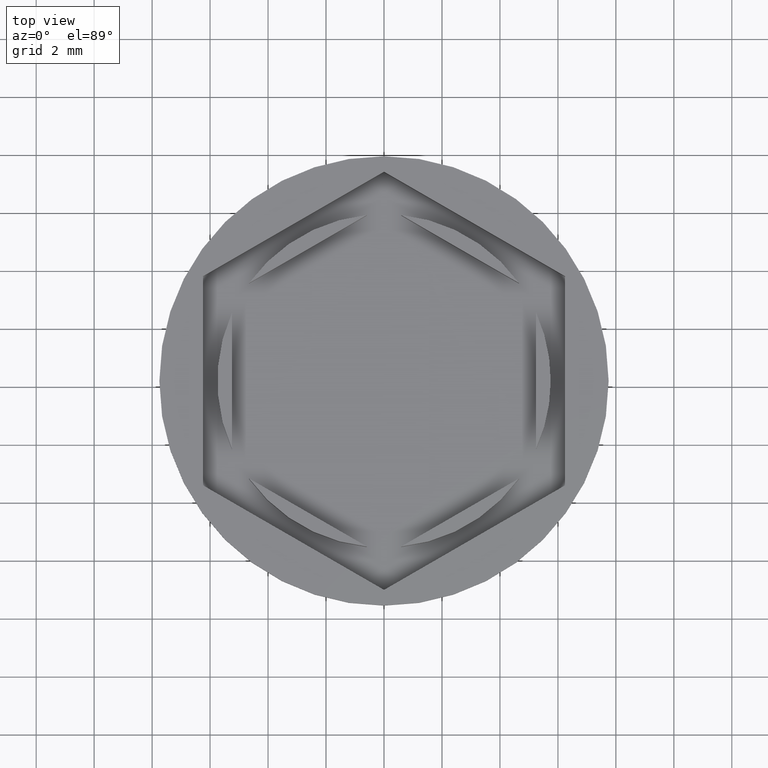
[diagram: clean part render]
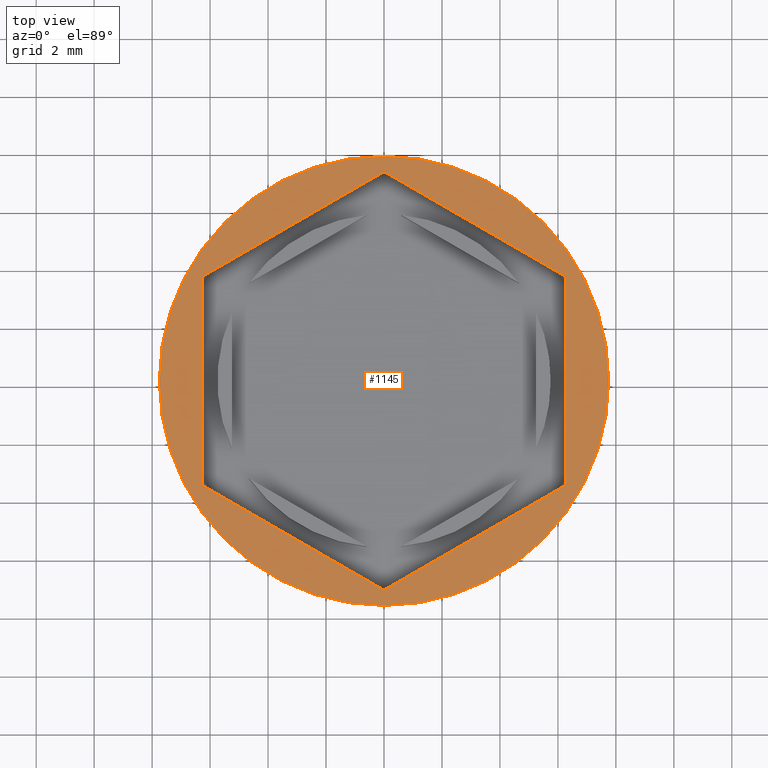
[diagram: same view with one face highlighted and labeled with its STEP entity id]
A machine part, top view. The second image highlights one B-rep face of the part: STEP entity #1145.
In plain terms, the highlighted planar face has unit normal (0, -0, 1).
Its self-contained STEP definition (entity closure, byte-faithful):
#5 = LINE ( 'NONE', #1872, #1799 ) ;
#23 = VECTOR ( 'NONE', #254, 1000.000000000000000 ) ;
#171 = DIRECTION ( 'NONE',  ( 0.000000000000000000, 1.000000000000000000, -0.000000000000000000 ) ) ;
#236 = VECTOR ( 'NONE', #1919, 1000.000000000000114 ) ;
#254 = DIRECTION ( 'NONE',  ( -0.8660254037844385966, -0.5000000000000001110, 0.000000000000000000 ) ) ;
#284 = LINE ( 'NONE', #892, #236 ) ;
#330 = VERTEX_POINT ( 'NONE', #678 ) ;
#339 = AXIS2_PLACEMENT_3D ( 'NONE', #1289, #1455, #713 ) ;
#457 = DIRECTION ( 'NONE',  ( 0.000000000000000000, -0.000000000000000000, 1.000000000000000000 ) ) ;
#459 = CARTESIAN_POINT ( 'NONE',  ( 0.000000000000000000, 0.000000000000000000, 0.000000000000000000 ) ) ;
#481 = CARTESIAN_POINT ( 'NONE',  ( 6.250000000000000000, 0.000000000000000000, 0.000000000000000000 ) ) ;
#491 = LINE ( 'NONE', #1699, #1961 ) ;
#504 = VERTEX_POINT ( 'NONE', #615 ) ;
#527 = CIRCLE ( 'NONE', #1065, 7.750000000000000000 ) ;
#535 = EDGE_CURVE ( 'NONE', #504, #1908, #627, .T. ) ;
#581 = DIRECTION ( 'NONE',  ( -0.000000000000000000, -0.000000000000000000, 1.000000000000000000 ) ) ;
#606 = EDGE_LOOP ( 'NONE', ( #839, #1871, #990, #1157, #861, #1196 ) ) ;
#615 = CARTESIAN_POINT ( 'NONE',  ( 6.250000000000000000, -3.608439182435161374, 0.000000000000000000 ) ) ;
#627 = LINE ( 'NONE', #481, #1366 ) ;
#656 = VERTEX_POINT ( 'NONE', #1891 ) ;
#678 = CARTESIAN_POINT ( 'NONE',  ( 4.336808689942017736E-16, 7.216878364870322748, 0.000000000000000000 ) ) ;
#688 = EDGE_LOOP ( 'NONE', ( #999, #1144 ) ) ;
#713 = DIRECTION ( 'NONE',  ( 1.000000000000000000, 0.000000000000000000, 0.000000000000000000 ) ) ;
#730 = EDGE_CURVE ( 'NONE', #1416, #1905, #527, .T. ) ;
#742 = EDGE_CURVE ( 'NONE', #1556, #504, #1181, .T. ) ;
#755 = VECTOR ( 'NONE', #1079, 999.9999999999998863 ) ;
#761 = EDGE_CURVE ( 'NONE', #1908, #330, #5, .T. ) ;
#763 = FACE_OUTER_BOUND ( 'NONE', #688, .T. ) ;
#835 = CARTESIAN_POINT ( 'NONE',  ( -3.125000000000000444, 5.412658773652740507, 0.000000000000000000 ) ) ;
#839 = ORIENTED_EDGE ( 'NONE', *, *, #535, .F. ) ;
#861 = ORIENTED_EDGE ( 'NONE', *, *, #1635, .F. ) ;
#892 = CARTESIAN_POINT ( 'NONE',  ( -3.124999999999998668, -5.412658773652743172, 0.000000000000000000 ) ) ;
#923 = LINE ( 'NONE', #835, #23 ) ;
#990 = ORIENTED_EDGE ( 'NONE', *, *, #1977, .F. ) ;
#999 = ORIENTED_EDGE ( 'NONE', *, *, #1087, .T. ) ;
#1065 = AXIS2_PLACEMENT_3D ( 'NONE', #459, #581, #1511 ) ;
#1079 = DIRECTION ( 'NONE',  ( 0.8660254037844387076, 0.4999999999999999445, 0.000000000000000000 ) ) ;
#1087 = EDGE_CURVE ( 'NONE', #1905, #1416, #1768, .T. ) ;
#1102 = CARTESIAN_POINT ( 'NONE',  ( 8.673617379884035472E-16, -7.216878364870322748, 0.000000000000000000 ) ) ;
#1144 = ORIENTED_EDGE ( 'NONE', *, *, #730, .T. ) ;
#1145 = ADVANCED_FACE ( 'NONE', ( #1818, #763 ), #1667, .T. ) ;
#1157 = ORIENTED_EDGE ( 'NONE', *, *, #1586, .F. ) ;
#1181 = LINE ( 'NONE', #1645, #755 ) ;
#1196 = ORIENTED_EDGE ( 'NONE', *, *, #761, .F. ) ;
#1215 = DIRECTION ( 'NONE',  ( -0.8660254037844387076, 0.4999999999999997780, 0.000000000000000000 ) ) ;
#1289 = CARTESIAN_POINT ( 'NONE',  ( 0.000000000000000000, 0.000000000000000000, 0.000000000000000000 ) ) ;
#1366 = VECTOR ( 'NONE', #171, 1000.000000000000000 ) ;
#1416 = VERTEX_POINT ( 'NONE', #1465 ) ;
#1455 = DIRECTION ( 'NONE',  ( -0.000000000000000000, -0.000000000000000000, 1.000000000000000000 ) ) ;
#1463 = VERTEX_POINT ( 'NONE', #1944 ) ;
#1465 = CARTESIAN_POINT ( 'NONE',  ( -7.750000000000000000, 9.491012693391987787E-16, 0.000000000000000000 ) ) ;
#1497 = DIRECTION ( 'NONE',  ( 1.000000000000000000, 0.000000000000000000, 0.000000000000000000 ) ) ;
#1511 = DIRECTION ( 'NONE',  ( 1.000000000000000000, 0.000000000000000000, 0.000000000000000000 ) ) ;
#1556 = VERTEX_POINT ( 'NONE', #1102 ) ;
#1586 = EDGE_CURVE ( 'NONE', #1463, #656, #491, .T. ) ;
#1635 = EDGE_CURVE ( 'NONE', #330, #1463, #923, .T. ) ;
#1645 = CARTESIAN_POINT ( 'NONE',  ( 3.124999999999999112, -5.412658773652741395, 0.000000000000000000 ) ) ;
#1651 = CARTESIAN_POINT ( 'NONE',  ( 0.000000000000000000, 0.000000000000000000, 0.000000000000000000 ) ) ;
#1667 = PLANE ( 'NONE',  #1800 ) ;
#1699 = CARTESIAN_POINT ( 'NONE',  ( -6.250000000000000000, 0.000000000000000000, 0.000000000000000000 ) ) ;
#1768 = CIRCLE ( 'NONE', #339, 7.750000000000000000 ) ;
#1799 = VECTOR ( 'NONE', #1215, 1000.000000000000114 ) ;
#1800 = AXIS2_PLACEMENT_3D ( 'NONE', #1651, #457, #1497 ) ;
#1801 = CARTESIAN_POINT ( 'NONE',  ( 7.750000000000000000, 0.000000000000000000, 0.000000000000000000 ) ) ;
#1818 = FACE_BOUND ( 'NONE', #606, .T. ) ;
#1871 = ORIENTED_EDGE ( 'NONE', *, *, #742, .F. ) ;
#1872 = CARTESIAN_POINT ( 'NONE',  ( 3.124999999999998224, 5.412658773652741395, 0.000000000000000000 ) ) ;
#1891 = CARTESIAN_POINT ( 'NONE',  ( -6.250000000000000000, -3.608439182435161374, 0.000000000000000000 ) ) ;
#1905 = VERTEX_POINT ( 'NONE', #1801 ) ;
#1908 = VERTEX_POINT ( 'NONE', #1965 ) ;
#1919 = DIRECTION ( 'NONE',  ( 0.8660254037844387076, -0.4999999999999997224, 0.000000000000000000 ) ) ;
#1944 = CARTESIAN_POINT ( 'NONE',  ( -6.250000000000000000, 3.608439182435160042, 0.000000000000000000 ) ) ;
#1961 = VECTOR ( 'NONE', #1979, 1000.000000000000000 ) ;
#1965 = CARTESIAN_POINT ( 'NONE',  ( 6.250000000000000000, 3.608439182435162262, 0.000000000000000000 ) ) ;
#1977 = EDGE_CURVE ( 'NONE', #656, #1556, #284, .T. ) ;
#1979 = DIRECTION ( 'NONE',  ( 0.000000000000000000, -1.000000000000000000, 0.000000000000000000 ) ) ;